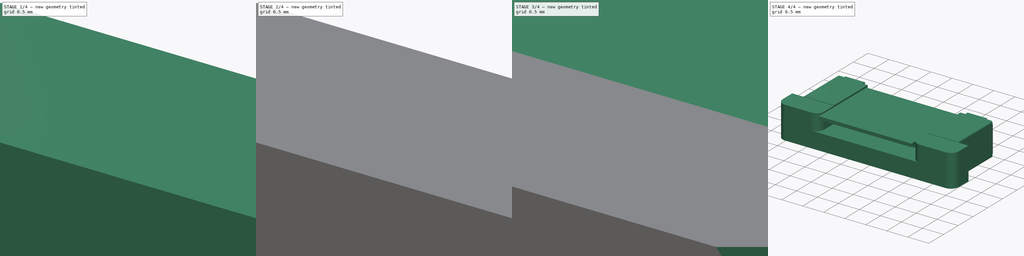
[diagram: build sequence overview — one tinted view per stage of 4, left to right]
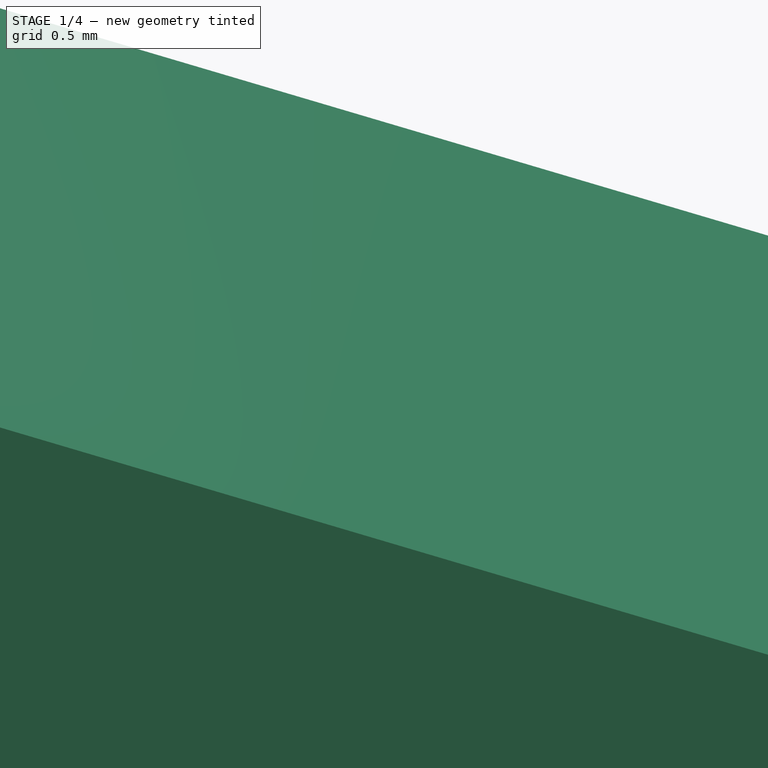
[diagram: stage 1 of 4 — iso view after this stage's code; geometry added in this stage tinted green]
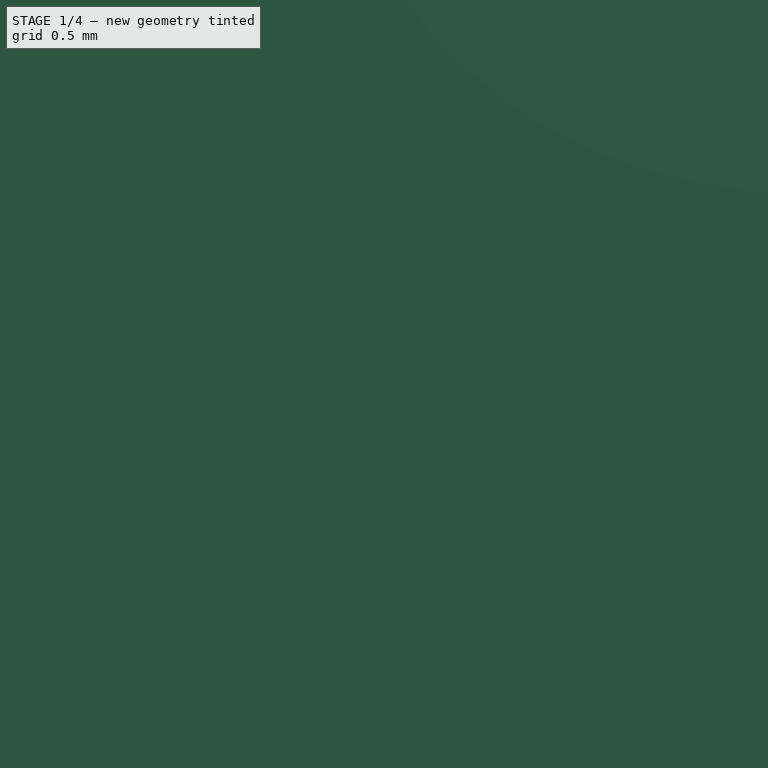
[diagram: stage 1 of 4 — front view after this stage's code; geometry added in this stage tinted green]
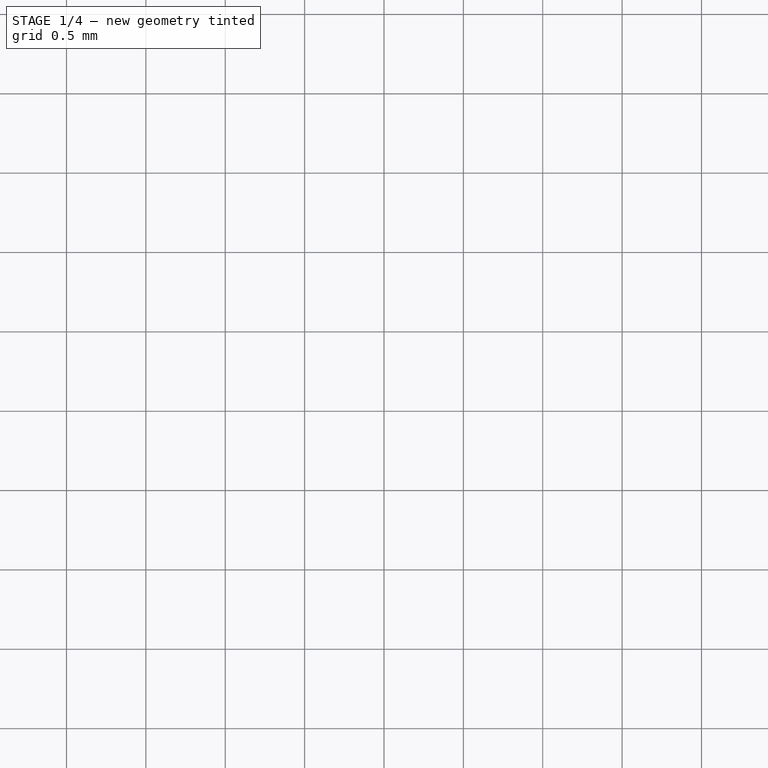
[diagram: stage 1 of 4 — top view after this stage's code; geometry added in this stage tinted green]
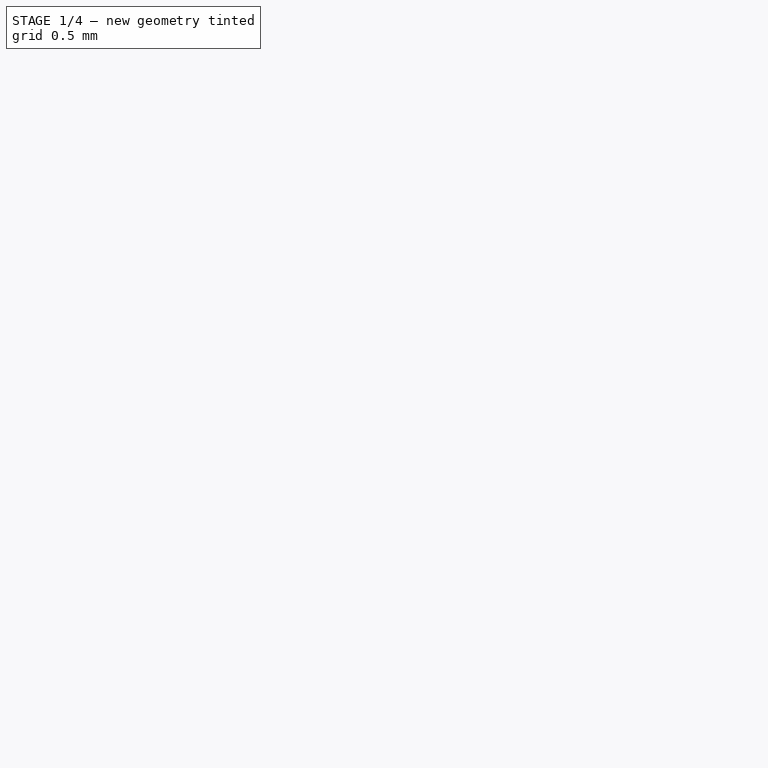
[diagram: stage 1 of 4 — right view after this stage's code; geometry added in this stage tinted green]
FCSTD DOCUMENT  (FreeCAD 0.20R29177 +426 (Git))
Label: Connector10P
License: All rights reserved
LicenseURL: http://en.wikipedia.org/wiki/All_rights_reserved
objects: Sketcher::SketchObject×9, PartDesign::Pad×8, PartDesign::ShapeBinder×7, Part::FeaturePython×2, App::Part×2, Part::Feature×1, Part::Refine×1, PartDesign::Plane×1, PartDesign::Mirrored×1, PartDesign::Fillet×1, PartDesign::LinearPattern×1, PartDesign::Pocket×1, PartDesign::Body×1
note: 44 computed .brp shape members not serialized (recipe doc carries the construction recipe); baked Part::Feature solids carry a one-line shape summary decoded from their .brp

FEATURE [Part::Feature] OBJ_NEW_PCB001
  shape: bbox 41.93 x 20.87 x 7.913 mm, 1774 faces, 0 solids (baked)
FEATURE [Part::Refine] OBJ_NEW_PCB001001
  Placement = pos=(0,0,-10) rot=(0,0,1;0rad)
  Source = -> OBJ_NEW_PCB001
FEATURE [PartDesign::ShapeBinder] ShapeBinder
  Support = -> [OBJ_NEW_PCB001001]
  TraceSupport = false
FEATURE [Sketcher::SketchObject] Sketch
  AttachmentOffset = pos=(0,0,0.138) rot=(0,0,1;0rad)
  ExternalGeometry = -> [ShapeBinder]
  FullyConstrained = true
  Placement = pos=(0,0,0.138) rot=(0,0,1;0rad)
  sketch-geometry (9):
    g0: LineSegment StartX=4029.04 StartY=-3060.45 StartZ=0 EndX=4070.96 EndY=-3060.45 EndZ=0
    g1: LineSegment StartX=4070.96 StartY=-3060.45 StartZ=0 EndX=4070.96 EndY=-3060.45 EndZ=0
    g2: LineSegment StartX=4070.96 StartY=-3060.45 StartZ=0 EndX=4070.96 EndY=-3060.45 EndZ=0
    g3: LineSegment StartX=4070.96 StartY=-3060.45 StartZ=0 EndX=4070.96 EndY=-3060.45 EndZ=0
    g4: LineSegment StartX=4070.96 StartY=-3060.45 StartZ=0 EndX=4070.93 EndY=-3063.68 EndZ=0
    g5: ArcOfCircle CenterX=4069.02 CenterY=-3063.66 CenterZ=0 NormalX=0 NormalY=0 NormalZ=1 AngleXU=0 Radius=1.91239 StartAngle=4.71239 EndAngle=6.27304
    g6: LineSegment StartX=4069.02 StartY=-3065.57 StartZ=0 EndX=4030.97 EndY=-3065.57 EndZ=0
    g7: ArcOfCircle CenterX=4030.97 CenterY=-3063.66 CenterZ=0 NormalX=0 NormalY=0 NormalZ=1 AngleXU=0 Radius=1.91239 StartAngle=3.14809 EndAngle=4.71239
    g8: LineSegment StartX=4029.06 StartY=-3063.67 StartZ=0 EndX=4029.04 EndY=-3060.45 EndZ=0
  constraints (23):
    c: Coincident(g-6,g0)
    c: Coincident(g0,g-7)
    c: Coincident(g0,g1)
    c: PointOnObject(g1,g-7)
    c: Vertical(g1)
    c: Coincident(g1,g2)
    c: PointOnObject(g2,g-7)
    c: Vertical(g2)
    c: Coincident(g2,g3)
    c: PointOnObject(g3,g-7)
    c: Vertical(g3)
    c: Coincident(g3,g4)
    c: Tangent(g4,g5) = 1.5708
    c: PointOnObject(g5,g-5)
    c: PointOnObject(g4,g-7)
    c: PointOnObject(g6,g-5)
    c: Tangent(g6,g5) = 1.5708
    c: PointOnObject(g-8,g5)
    c: Tangent(g7,g6) = 1.5708
    c: Equal(g7,g5)
    c: Coincident(g8,g0)
    c: PointOnObject(g7,g-6)
    c: Tangent(g8,g7) = 1.5708
FEATURE [PartDesign::Pad] Pad
  Direction = (0,0,1)
  Length = 7.68
  Length2 = 10
  Placement = pos=(0,0,0.138) rot=(0,0,1;0rad)
  Profile = -> Sketch
  ReferenceAxis = -> Sketch [N_Axis]
  Type = 0
FEATURE [PartDesign::ShapeBinder] ShapeBinder001
  Support = -> [OBJ_NEW_PCB001001]
  TraceSupport = false
FEATURE [PartDesign::ShapeBinder] ShapeBinder002
  Support = -> [OBJ_NEW_PCB001001]
  TraceSupport = false
FEATURE [PartDesign::ShapeBinder] ShapeBinder003
  Support = -> [OBJ_NEW_PCB001001]
  TraceSupport = false
FEATURE [Sketcher::SketchObject] Sketch001
  ExternalGeometry = -> [ShapeBinder001,ShapeBinder003]
  FullyConstrained = true
  MapMode = 5
  Placement = pos=(0,-3049.04,0) rot=(0,0.707107,0.707107;3.14159rad)
  Support = -> [ShapeBinder003]
  sketch-geometry (6):
    g0: LineSegment StartX=-4068.04 StartY=7.90646 StartZ=0 EndX=-4061.02 EndY=7.90646 EndZ=0
    g1: LineSegment StartX=-4061.02 StartY=7.90646 StartZ=0 EndX=-4061.02 EndY=0.0524015 EndZ=0
    g2: LineSegment StartX=-4061.02 StartY=0.0524015 StartZ=0 EndX=-4068.04 EndY=0.0524015 EndZ=0
    g3: ArcOfCircle CenterX=-4068.04 CenterY=0.407349 CenterZ=0 NormalX=0 NormalY=0 NormalZ=1 AngleXU=0 Radius=0.354948 StartAngle=3.14159 EndAngle=4.71239
    g4: LineSegment StartX=-4068.39 StartY=0.407349 StartZ=0 EndX=-4068.39 EndY=7.55151 EndZ=0
    g5: ArcOfCircle CenterX=-4068.04 CenterY=7.55151 CenterZ=0 NormalX=0 NormalY=0 NormalZ=1 AngleXU=0 Radius=0.354948 StartAngle=1.5708 EndAngle=3.14159
  constraints (16):
    c: PointOnObject(g0,g-3)
    c: Horizontal(g0)
    c: Coincident(g0,g1)
    c: Vertical(g1)
    c: Coincident(g1,g2)
    c: Horizontal(g2)
    c: Tangent(g2,g3) = 1.5708
    c: Vertical(g4)
    c: Tangent(g4,g5) = 1.5708
    c: Tangent(g5,g0) = 1.5708
    c: PointOnObject(g4,g-4)
    c: PointOnObject(g-9,g1)
    c: PointOnObject(g2,g-8)
    c: Tangent(g3,g4) = 1.5708
    c: Equal(g3,g5)
    c: PointOnObject(g-5,g5)
FEATURE [PartDesign::Pad] Pad001
  BaseFeature = -> Pad
  Direction = (0,1,-2e-16)
  Length = 11.42
  Length2 = 10
  Placement = pos=(0,0,0.138) rot=(0,0,1;0rad)
  Profile = -> Sketch001
  ReferenceAxis = -> Sketch001 [N_Axis]
  Reversed = true
  Type = 0
FEATURE [Sketcher::SketchObject] Sketch002
  ExternalGeometry = -> [Sketch001,ShapeBinder002]
  FullyConstrained = true
  MapMode = 5
  Placement = pos=(-2.45147,-3044.98,-0.004386) rot=(0.000285,0.707106,0.707107;3.14102rad)
  Support = -> [ShapeBinder002]
  sketch-geometry (6):
    g0: LineSegment StartX=-4070.85 StartY=7.13036 StartZ=0 EndX=-4064.93 EndY=7.13036 EndZ=0
    g1: LineSegment StartX=-4063.79 StartY=5.98665 StartZ=0 EndX=-4063.79 EndY=1.97487 EndZ=0
    g2: LineSegment StartX=-4064.93 StartY=0.831161 StartZ=0 EndX=-4070.85 EndY=0.831161 EndZ=0
    g3: LineSegment StartX=-4070.85 StartY=0.831161 StartZ=0 EndX=-4070.85 EndY=7.13036 EndZ=0
    g4: ArcOfCircle CenterX=-4064.93 CenterY=5.98665 CenterZ=0 NormalX=0 NormalY=0 NormalZ=1 AngleXU=0 Radius=1.14371 StartAngle=8.5e-15 EndAngle=1.5708
    g5: ArcOfCircle CenterX=-4064.93 CenterY=1.97487 CenterZ=0 NormalX=0 NormalY=0 NormalZ=1 AngleXU=0 Radius=1.14371 StartAngle=4.71239 EndAngle=6.28319
  constraints (16):
    c: Coincident(g2,g3)
    c: Coincident(g3,g0)
    c: Horizontal(g0)
    c: Horizontal(g2)
    c: Vertical(g1)
    c: Vertical(g3)
    c: Tangent(g0,g4) = 1.5708
    c: Tangent(g1,g4) = 1.5708
    c: Tangent(g1,g5) = 1.5708
    c: Tangent(g2,g5) = 1.5708
    c: Equal(g5,g4)
    c: PointOnObject(g0,g-3)
    c: PointOnObject(g-4,g0)
    c: PointOnObject(g-5,g2)
    c: PointOnObject(g-6,g1)
    c: PointOnObject(g-8,g4)
FEATURE [PartDesign::Pad] Pad002
  BaseFeature = -> Pad001
  Direction = (0.000805087,1,1.44041e-06)
  Length = 3
  Length2 = 10
  Placement = pos=(0,0,0.138) rot=(0,0,1;0rad)
  Profile = -> Sketch002
  ReferenceAxis = -> Sketch002 [N_Axis]
  Refine = true
  Reversed = true
  Type = 0
FEATURE [Sketcher::SketchObject] Sketch003
  ExternalGeometry = -> [ShapeBinder001,Sketch001]
  FullyConstrained = true
  MapMode = 5
  Placement = pos=(0,-3048.64,0) rot=(0,0.707107,0.707107;3.14159rad)
  Support = -> [ShapeBinder001]
  sketch-geometry (14):
    g0: ArcOfCircle CenterX=-4068.04 CenterY=7.55151 CenterZ=0 NormalX=0 NormalY=0 NormalZ=1 AngleXU=0 Radius=0.354948 StartAngle=1.5708 EndAngle=3.14159
    g1: LineSegment StartX=-4068.39 StartY=7.55151 StartZ=0 EndX=-4068.39 EndY=7.12597 EndZ=0
    g2: LineSegment StartX=-4068.39 StartY=7.12597 StartZ=0 EndX=-4068.01 EndY=7.12597 EndZ=0
    g3: LineSegment StartX=-4068.01 StartY=7.12597 StartZ=0 EndX=-4068.01 EndY=7.51967 EndZ=0
    g4: LineSegment StartX=-4068.01 StartY=7.51967 StartZ=0 EndX=-4066.83 EndY=7.51967 EndZ=0
    g5: LineSegment StartX=-4066.83 StartY=7.51967 StartZ=0 EndX=-4066.83 EndY=7.90646 EndZ=0
    g6: LineSegment StartX=-4066.83 StartY=7.90646 StartZ=0 EndX=-4068.04 EndY=7.90646 EndZ=0
    g7: LineSegment StartX=-4068.39 StartY=0.82677 StartZ=0 EndX=-4068.01 EndY=0.82677 EndZ=0
    g8: LineSegment StartX=-4066.83 StartY=0.43307 StartZ=0 EndX=-4066.83 EndY=0.0524015 EndZ=0
    g9: LineSegment StartX=-4066.83 StartY=0.0524015 StartZ=0 EndX=-4068.04 EndY=0.0524015 EndZ=0
    g10: LineSegment StartX=-4068.39 StartY=0.407349 StartZ=0 EndX=-4068.39 EndY=0.82677 EndZ=0
    g11: LineSegment StartX=-4066.83 StartY=0.43307 StartZ=0 EndX=-4068.01 EndY=0.43307 EndZ=0
    g12: LineSegment StartX=-4068.01 StartY=0.43307 StartZ=0 EndX=-4068.01 EndY=0.82677 EndZ=0
    g13: ArcOfCircle CenterX=-4068.04 CenterY=0.407349 CenterZ=0 NormalX=0 NormalY=0 NormalZ=1 AngleXU=0 Radius=0.354948 StartAngle=3.14159 EndAngle=4.71239
  constraints (33):
    c: Tangent(g0,g1) = -1.5708
    c: Coincident(g1,g2)
    c: Coincident(g2,g-4)
    c: Coincident(g2,g3)
    c: Coincident(g3,g-4)
    c: Coincident(g3,g4)
    c: Coincident(g4,g-3)
    c: Coincident(g4,g5)
    c: Coincident(g5,g6)
    c: Coincident(g6,g0)
    c: Horizontal(g5,g-5)
    c: Vertical(g5)
    c: Coincident(g-5,g0)
    c: Coincident(g0,g-5)
    c: Vertical(g1)
    c: Horizontal(g2)
    c: Coincident(g8,g9)
    c: Coincident(g10,g7)
    c: Horizontal(g7)
    c: Horizontal(g9)
    c: Vertical(g8)
    c: Vertical(g10)
    c: Coincident(g11,g12)
    c: Tangent(g9,g13) = 1.5708
    c: Tangent(g10,g13) = 1.5708
    c: Coincident(g11,g8)
    c: Coincident(g12,g7)
    c: Equal(g13,g0)
    c: Coincident(g11,g-9)
    c: PointOnObject(g8,g-6)
    c: Coincident(g-8,g8)
    c: Coincident(g7,g-9)
    c: PointOnObject(g7,g-7)
FEATURE [PartDesign::Pad] Pad003
  BaseFeature = -> Pad002
  Direction = (0,1,-2e-16)
  Length = 1
  Length2 = 10
  Placement = pos=(0,0,0.138) rot=(0,0,1;0rad)
  Profile = -> Sketch003
  ReferenceAxis = -> Sketch003 [N_Axis]
  Refine = true
  Reversed = true
  Type = 0
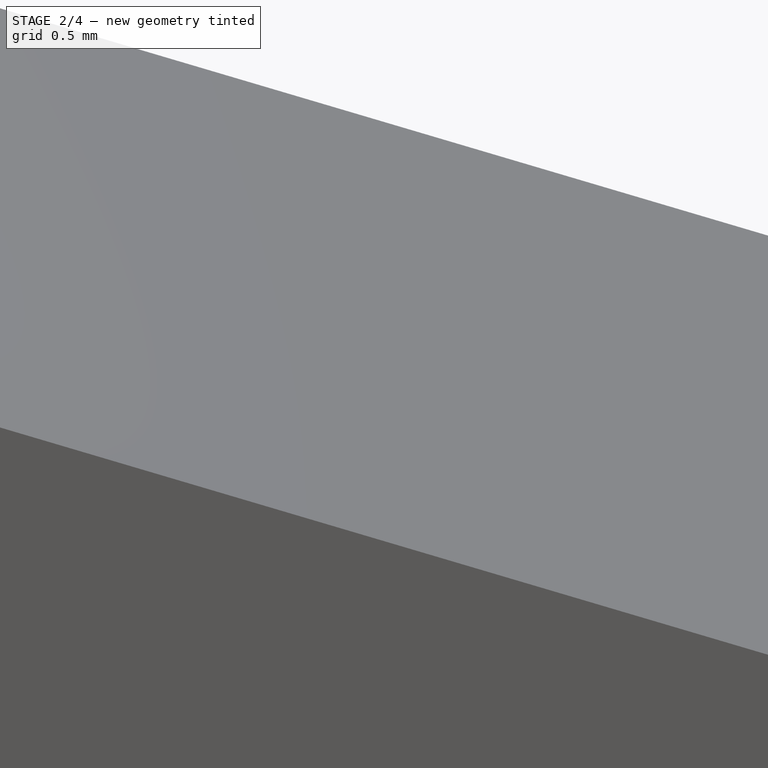
[diagram: stage 2 of 4 — iso view after this stage's code; geometry added in this stage tinted green]
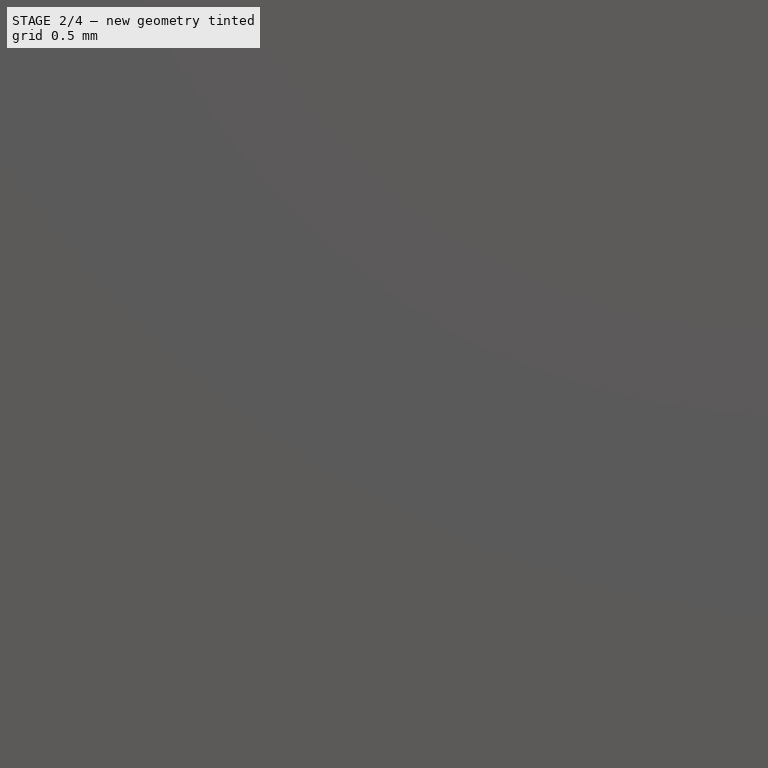
[diagram: stage 2 of 4 — front view after this stage's code; geometry added in this stage tinted green]
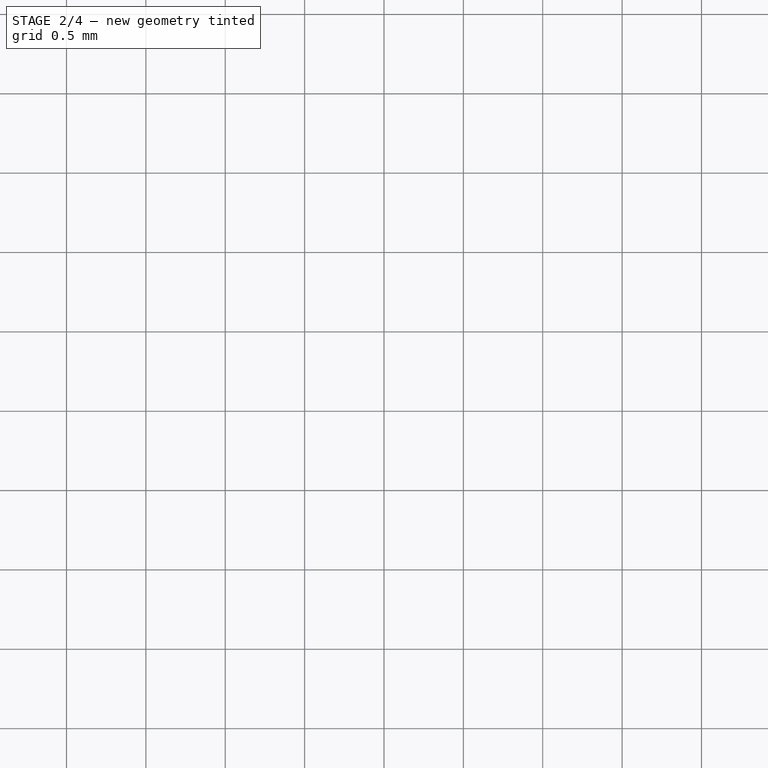
[diagram: stage 2 of 4 — top view after this stage's code; geometry added in this stage tinted green]
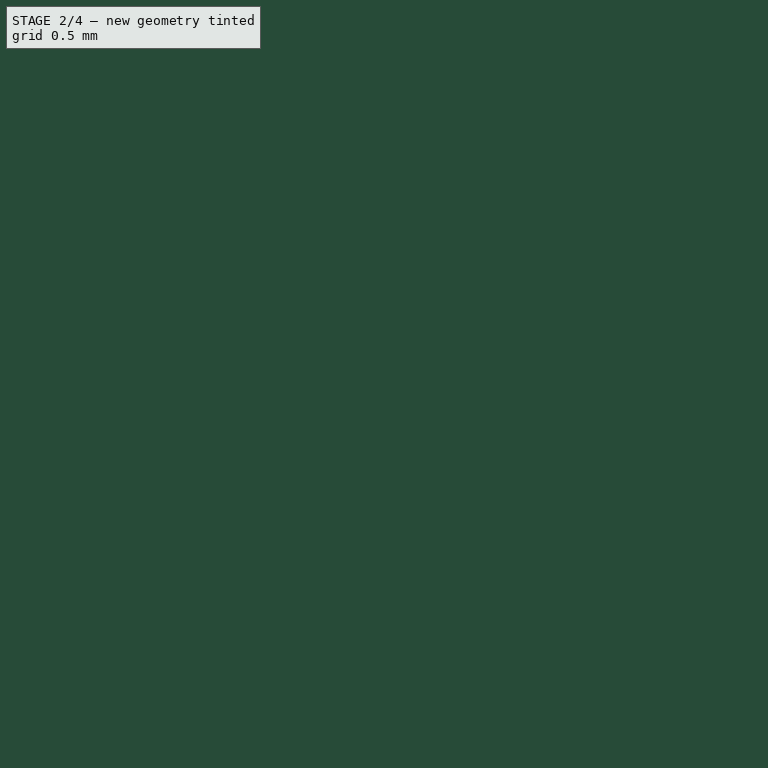
[diagram: stage 2 of 4 — right view after this stage's code; geometry added in this stage tinted green]
FEATURE [PartDesign::ShapeBinder] ShapeBinder004
  Support = -> [OBJ_NEW_PCB001001]
  TraceSupport = false
FEATURE [Sketcher::SketchObject] Sketch004
  ExternalGeometry = -> [ShapeBinder004,Sketch003]
  FullyConstrained = true
  MapMode = 5
  Placement = pos=(0,-3048.25,0) rot=(0,0.707107,0.707107;3.14159rad)
  Support = -> [ShapeBinder004]
  sketch-geometry (8):
    g0: LineSegment StartX=-4066.83 StartY=7.90646 StartZ=0 EndX=-4062.2 EndY=7.90646 EndZ=0
    g1: LineSegment StartX=-4062.2 StartY=7.90646 StartZ=0 EndX=-4062.2 EndY=7.51967 EndZ=0
    g2: LineSegment StartX=-4062.2 StartY=7.51967 StartZ=0 EndX=-4066.83 EndY=7.51967 EndZ=0
    g3: LineSegment StartX=-4066.83 StartY=7.51967 StartZ=0 EndX=-4066.83 EndY=7.90646 EndZ=0
    g4: LineSegment StartX=-4066.83 StartY=0.0524015 StartZ=0 EndX=-4062.2 EndY=0.0524015 EndZ=0
    g5: LineSegment StartX=-4062.2 StartY=0.0524015 StartZ=0 EndX=-4062.2 EndY=0.43307 EndZ=0
    g6: LineSegment StartX=-4062.2 StartY=0.43307 StartZ=0 EndX=-4066.83 EndY=0.43307 EndZ=0
    g7: LineSegment StartX=-4066.83 StartY=0.43307 StartZ=0 EndX=-4066.83 EndY=0.0524015 EndZ=0
  constraints (20):
    c: Coincident(g0,g1)
    c: Coincident(g1,g2)
    c: Coincident(g2,g3)
    c: Coincident(g3,g0)
    c: Horizontal(g0)
    c: Horizontal(g2)
    c: Vertical(g1)
    c: Vertical(g3)
    c: Coincident(g0,g-10)
    c: Coincident(g1,g-4)
    c: Coincident(g4,g5)
    c: Coincident(g5,g6)
    c: Coincident(g6,g7)
    c: Coincident(g7,g4)
    c: Horizontal(g4)
    c: Horizontal(g6)
    c: Vertical(g5)
    c: Vertical(g7)
    c: Coincident(g4,g-8)
    c: Coincident(g5,g-6)
FEATURE [PartDesign::Pad] Pad004
  BaseFeature = -> Pad003
  Direction = (0,1,-2e-16)
  Length = 1
  Length2 = 10
  Placement = pos=(0,0,0.138) rot=(0,0,1;0rad)
  Profile = -> Sketch004
  ReferenceAxis = -> Sketch004 [N_Axis]
  Refine = true
  Reversed = true
  Type = 0
FEATURE [PartDesign::Plane] DatumPlane
  Length = 3169.19
  MapMode = 45
  Placement = pos=(4050,-3060.45,0.138) rot=(0.57735,0.57735,0.57735;2.0944rad)
  ResizeMode = 0
  Support = -> [Sketch]
  Width = 128.62
FEATURE [PartDesign::Mirrored] Mirrored
  BaseFeature = -> Pad004
  MirrorPlane = -> DatumPlane
  Originals = -> [Pad001,Pad002,Pad003,Pad004]
  Placement = pos=(0,0,0.138) rot=(0,0,1;0rad)
  Refine = true
FEATURE [PartDesign::ShapeBinder] ShapeBinder005
  Support = -> [OBJ_NEW_PCB001001]
  TraceSupport = false
FEATURE [Sketcher::SketchObject] Sketch005
  ExternalGeometry = -> [ShapeBinder005]
  FullyConstrained = true
  MapMode = 5
  Placement = pos=(0,-3049.43,0) rot=(0,0.707107,0.707107;3.14159rad)
  Support = -> [ShapeBinder005]
  sketch-geometry (4):
    g0: LineSegment StartX=-4061.02 StartY=5.94487 StartZ=0 EndX=-4038.98 EndY=5.94487 EndZ=0
    g1: LineSegment StartX=-4038.98 StartY=5.94487 StartZ=0 EndX=-4038.98 EndY=0.0393696 EndZ=0
    g2: LineSegment StartX=-4038.98 StartY=0.0393696 StartZ=0 EndX=-4061.02 EndY=0.0393696 EndZ=0
    g3: LineSegment StartX=-4061.02 StartY=0.0393696 StartZ=0 EndX=-4061.02 EndY=5.94487 EndZ=0
  constraints (10):
    c: Coincident(g0,g1)
    c: Coincident(g1,g2)
    c: Coincident(g2,g3)
    c: Coincident(g3,g0)
    c: Horizontal(g0)
    c: Horizontal(g2)
    c: Vertical(g1)
    c: Vertical(g3)
    c: Coincident(g0,g-3)
    c: Coincident(g1,g-5)
FEATURE [PartDesign::ShapeBinder] ShapeBinder006
  Support = -> [OBJ_NEW_PCB001001]
  TraceSupport = false
FEATURE [Sketcher::SketchObject] Sketch006
  ExternalGeometry = -> [ShapeBinder006]
  FullyConstrained = true
  MapMode = 5
  Placement = pos=(4059.25,0,0) rot=(0.57735,0.57735,0.57735;2.0944rad)
  Support = -> [ShapeBinder006]
  sketch-geometry (11):
    g0: ArcOfCircle CenterX=-3048.98 CenterY=5.12824 CenterZ=0 NormalX=0 NormalY=0 NormalZ=1 AngleXU=0 Radius=0.363535 StartAngle=0.00710585 EndAngle=1.5708
    g1: ArcOfCircle CenterX=-3048.19 CenterY=1.8264 CenterZ=0 NormalX=0 NormalY=0 NormalZ=1 AngleXU=0 Radius=0.399264 StartAngle=3.1487 EndAngle=4.53291
    g2: ArcOfCircle CenterX=-3048.09 CenterY=1.30579 CenterZ=0 NormalX=0 NormalY=0 NormalZ=1 AngleXU=0 Radius=1.29876 StartAngle=3.14159 EndAngle=4.71031
    g3: LineSegment StartX=-3048.27 StartY=1.43355 StartZ=0 EndX=-3044.7 EndY=0.7874 EndZ=0
    g4: LineSegment StartX=-3044.7 StartY=0.7874 StartZ=0 EndX=-3044.7 EndY=0 EndZ=0
    g5: LineSegment StartX=-3044.7 StartY=0 StartZ=0 EndX=-3048.09 EndY=0.00703592 EndZ=0
    g6: LineSegment StartX=-3048.59 StartY=1.82356 StartZ=0 EndX=-3048.62 EndY=5.13083 EndZ=0
    g7: LineSegment StartX=-3048.98 StartY=5.49178 StartZ=0 EndX=-3049.43 EndY=5.49178 EndZ=0
    g8: LineSegment StartX=-3049.43 StartY=5.49178 StartZ=0 EndX=-3049.43 EndY=4.90123 EndZ=0
    g9: LineSegment StartX=-3049.43 StartY=4.90123 StartZ=0 EndX=-3049.39 EndY=4.90123 EndZ=0
    g10: LineSegment StartX=-3049.39 StartY=4.90123 StartZ=0 EndX=-3049.39 EndY=1.30579 EndZ=0
  constraints (26):
    c: Coincident(g3,g4)
    c: Coincident(g4,g5)
    c: Horizontal(g7)
    c: Coincident(g7,g8)
    c: Vertical(g8)
    c: Coincident(g8,g9)
    c: Horizontal(g9)
    c: Coincident(g9,g10)
    c: Vertical(g10)
    c: Tangent(g2,g10) = -1.5708
    c: Tangent(g5,g2) = 1.5708
    c: Tangent(g3,g1) = -1.5708
    c: Tangent(g1,g6) = 1.5708
    c: Tangent(g0,g6) = -1.5708
    c: Tangent(g0,g7) = -1.5708
    c: Coincident(g7,g-3)
    c: PointOnObject(g0,g-4)
    c: PointOnObject(g-5,g0)
    c: Coincident(g9,g-5)
    c: PointOnObject(g2,g-6)
    c: PointOnObject(g-7,g2)
    c: Coincident(g-6,g4)
    c: Coincident(g3,g-8)
    c: PointOnObject(g1,g-4)
    c: PointOnObject(g1,g-8)
    c: Tangent(g1,g-9)
FEATURE [Sketcher::SketchObject] Sketch007
  AttachmentOffset = pos=(0,0,3.807) rot=(0,0,1;0rad)
  ExternalGeometry = -> [Sketch,Sketch005]
  FullyConstrained = true
  MapMode = 2
  Placement = pos=(0,0,3.945) rot=(0,0,1;0rad)
  Support = -> [Sketch]
  sketch-geometry (6):
    g0: ArcOfCircle CenterX=4037.06 CenterY=-3063.66 CenterZ=0 NormalX=0 NormalY=0 NormalZ=1 AngleXU=0 Radius=1.91239 StartAngle=4.71239 EndAngle=6.28319
    g1: LineSegment StartX=4038.98 StartY=-3063.66 StartZ=0 EndX=4038.98 EndY=-3060.45 EndZ=0
    g2: LineSegment StartX=4038.98 StartY=-3060.45 StartZ=0 EndX=4061.02 EndY=-3060.45 EndZ=0
    g3: LineSegment StartX=4061.02 StartY=-3060.45 StartZ=0 EndX=4061.02 EndY=-3063.66 EndZ=0
    g4: ArcOfCircle CenterX=4062.94 CenterY=-3063.66 CenterZ=0 NormalX=0 NormalY=0 NormalZ=1 AngleXU=0 Radius=1.91239 StartAngle=3.14159 EndAngle=4.71239
    g5: LineSegment StartX=4062.94 StartY=-3065.57 StartZ=0 EndX=4037.06 EndY=-3065.57 EndZ=0
  constraints (16):
    c: Vertical(g1)
    c: Coincident(g1,g2)
    c: Horizontal(g2)
    c: Coincident(g2,g3)
    c: Vertical(g3)
    c: Tangent(g3,g4) = -1.5708
    c: Tangent(g5,g0) = 1.5708
    c: Equal(g0,g4)
    c: Equal(g0,g-3)
    c: PointOnObject(g0,g-6)
    c: PointOnObject(g-5,g1)
    c: PointOnObject(g1,g-4)
    c: PointOnObject(g4,g-6)
    c: Tangent(g1,g0) = -1.5708
    c: Tangent(g4,g5) = 1.5708
    c: PointOnObject(g-5,g3)
FEATURE [Sketcher::SketchObject] Sketch008
  ExternalGeometry = -> [Sketch,Sketch005,Sketch004]
  FullyConstrained = true
  MapMode = 5
  Placement = pos=(4050,-3060.45,0.138) rot=(0.57735,0.57735,0.57735;2.0944rad)
  Support = -> [DatumPlane]
  sketch-geometry (8):
    g0: LineSegment StartX=11.0234 StartY=7.38167 StartZ=0 EndX=-5.11816 EndY=7.38167 EndZ=0
    g1: LineSegment StartX=-5.11816 StartY=7.38167 StartZ=0 EndX=-5.11816 EndY=6.59427 EndZ=0
    g2: LineSegment StartX=-5.11816 StartY=6.59427 StartZ=0 EndX=0.26237 EndY=6.59427 EndZ=0
    g3: LineSegment StartX=0.26237 StartY=6.59427 StartZ=0 EndX=0.26237 EndY=5.80687 EndZ=0
    g4: LineSegment StartX=0.26237 StartY=5.80687 StartZ=0 EndX=5.6429 EndY=5.80687 EndZ=0
    g5: LineSegment StartX=5.6429 StartY=5.80687 StartZ=0 EndX=5.6429 EndY=6.59427 EndZ=0
    g6: LineSegment StartX=5.6429 StartY=6.59427 StartZ=0 EndX=11.0234 EndY=6.59427 EndZ=0
    g7: LineSegment StartX=11.0234 StartY=6.59427 StartZ=0 EndX=11.0234 EndY=7.38167 EndZ=0
  constraints (24):
    c: Horizontal(g0)
    c: Coincident(g0,g1)
    c: Vertical(g1)
    c: Coincident(g1,g2)
    c: Horizontal(g2)
    c: Coincident(g2,g3)
    c: Coincident(g3,g4)
    c: Horizontal(g4)
    c: Coincident(g4,g5)
    c: Coincident(g5,g6)
    c: Horizontal(g6)
    c: Coincident(g6,g7)
    c: Vertical(g7)
    c: Equal(g2,g6)
    c: Equal(g6,g4)
    c: Vertical(g3)
    c: Vertical(g5)
    c: Horizontal(g2,g5)
    c: PointOnObject(g-3,g1)
    c: Equal(g3,g1)
    c: Coincident(g0,g7)
    c: PointOnObject(g-5,g0)
    c: PointOnObject(g-4,g7)
    c: Horizontal(g4,g-4)
FEATURE [PartDesign::Fillet] Fillet
  Base = -> Mirrored [Edge188,Edge27]
  BaseFeature = -> Mirrored
  Placement = pos=(0,0,0.138) rot=(0,0,1;0rad)
  Radius = 0.4
  SupportTransform = false
  UseAllEdges = false
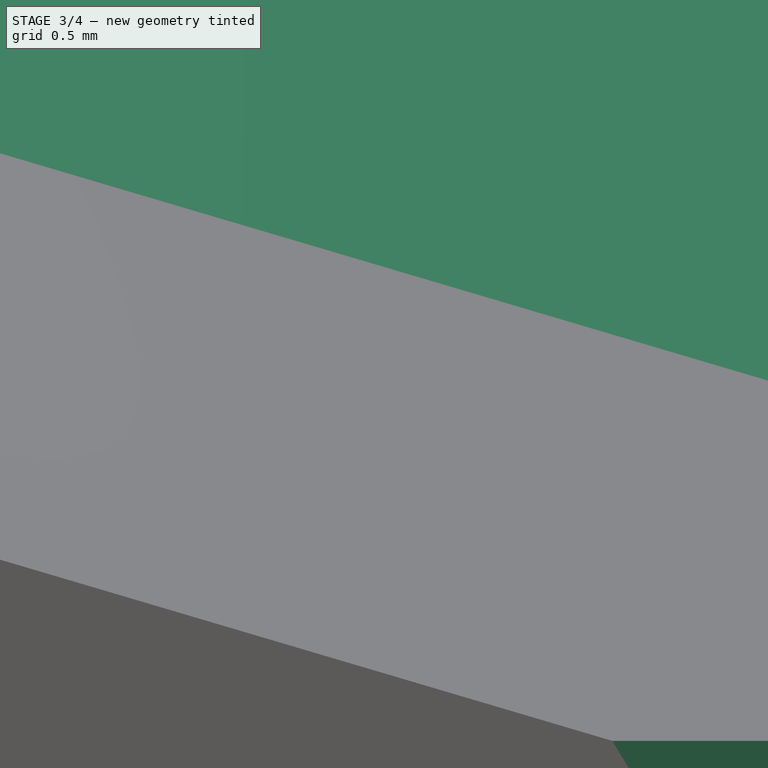
[diagram: stage 3 of 4 — iso view after this stage's code; geometry added in this stage tinted green]
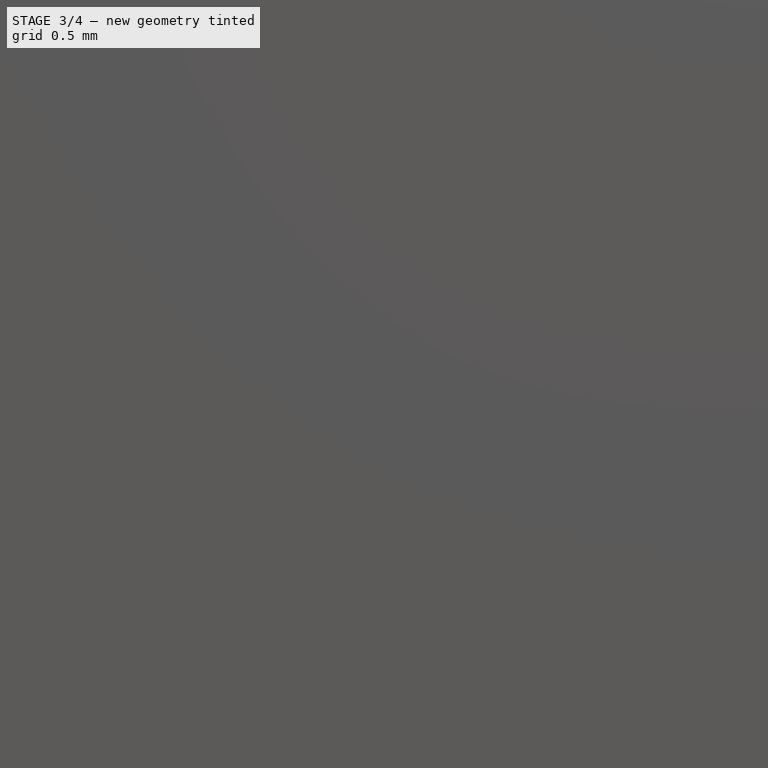
[diagram: stage 3 of 4 — front view after this stage's code; geometry added in this stage tinted green]
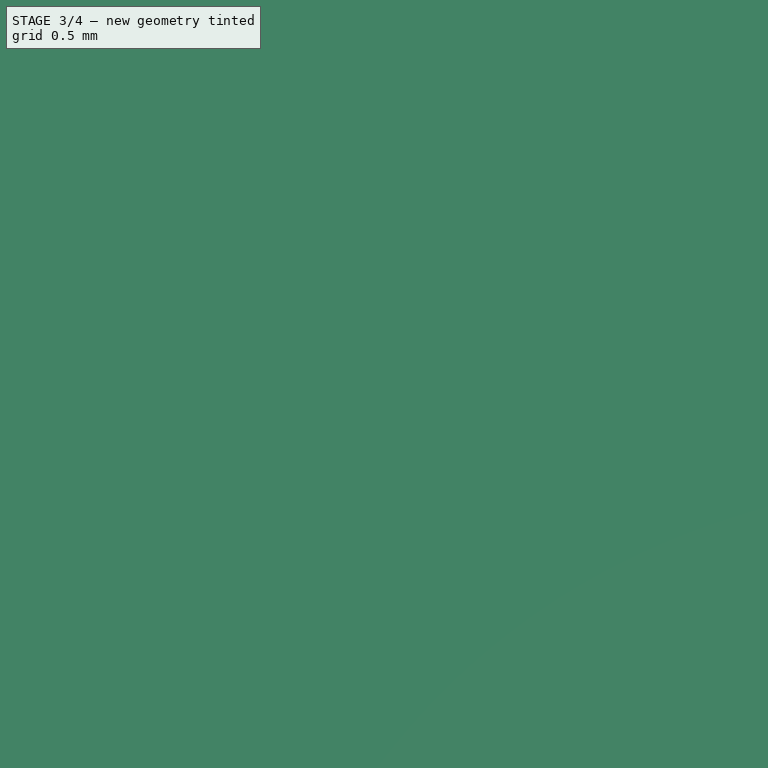
[diagram: stage 3 of 4 — top view after this stage's code; geometry added in this stage tinted green]
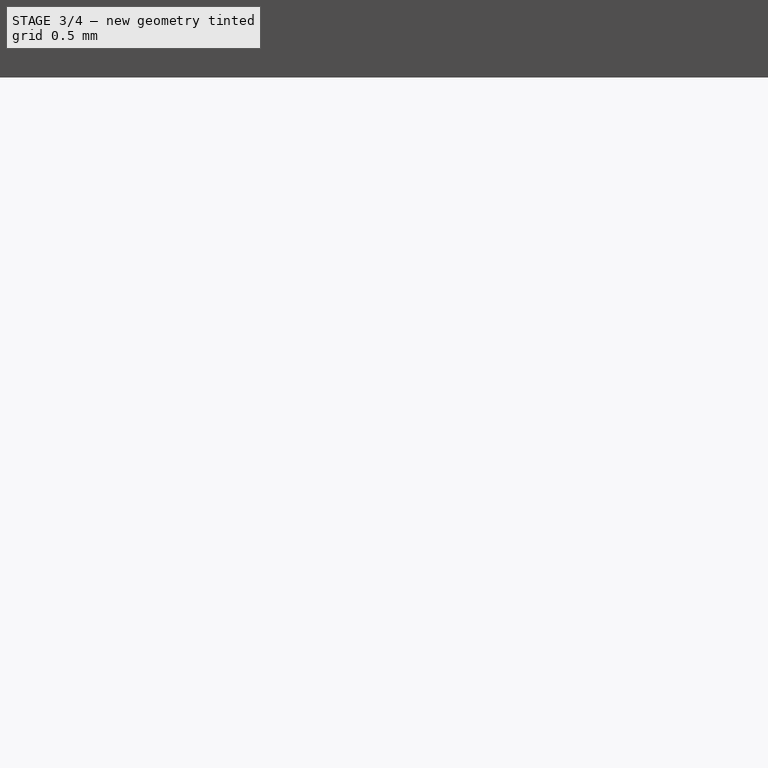
[diagram: stage 3 of 4 — right view after this stage's code; geometry added in this stage tinted green]
FEATURE [PartDesign::Pad] Pad005
  BaseFeature = -> Fillet
  Direction = (0,1,-2e-16)
  Length = 11
  Length2 = 10
  Placement = pos=(0,0,0.138) rot=(0,0,1;0rad)
  Profile = -> Sketch005
  ReferenceAxis = -> Sketch005 [N_Axis]
  Reversed = true
  Type = 0
FEATURE [PartDesign::Pad] Pad006
  BaseFeature = -> Pad005
  Direction = (1,0,0)
  Length = 0.79
  Length2 = 10
  Placement = pos=(0,0,0.138) rot=(0,0,1;0rad)
  Profile = -> Sketch006
  ReferenceAxis = -> Sketch006 [N_Axis]
  Reversed = true
  Type = 0
FEATURE [PartDesign::LinearPattern] LinearPattern
  BaseFeature = -> Pad006
  Direction = -> X_Axis
  Length = 17.716
  Occurrences = 10
  Originals = -> [Pad006]
  Placement = pos=(0,0,0.138) rot=(0,0,1;0rad)
  Reversed = true
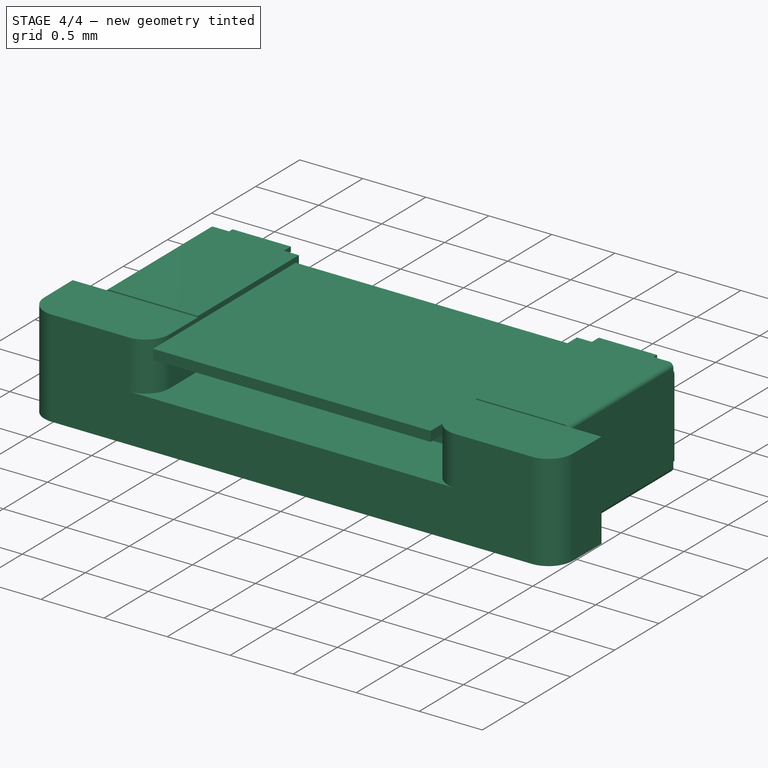
[diagram: stage 4 of 4 — iso view after this stage's code; geometry added in this stage tinted green]
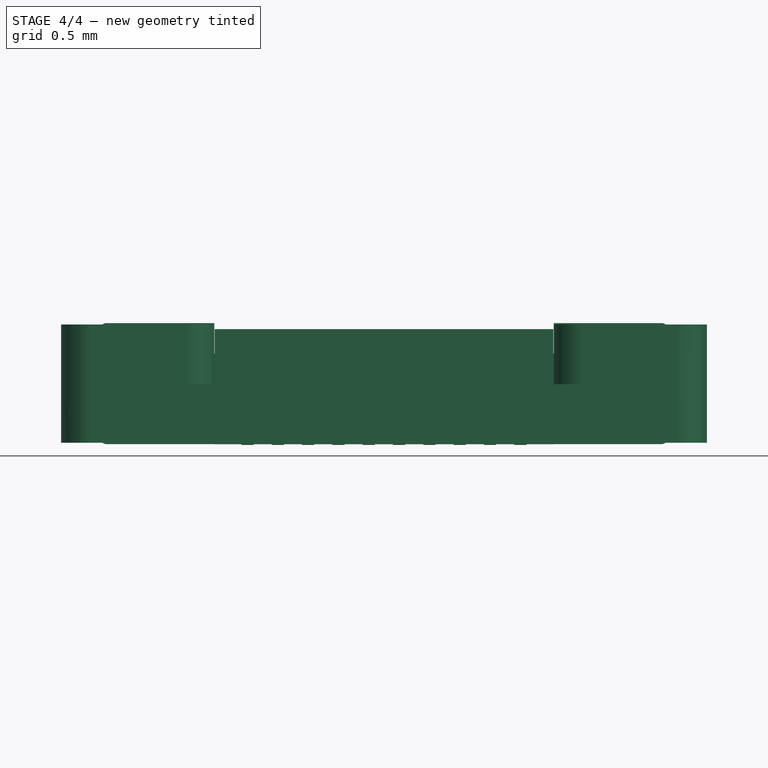
[diagram: stage 4 of 4 — front view after this stage's code; geometry added in this stage tinted green]
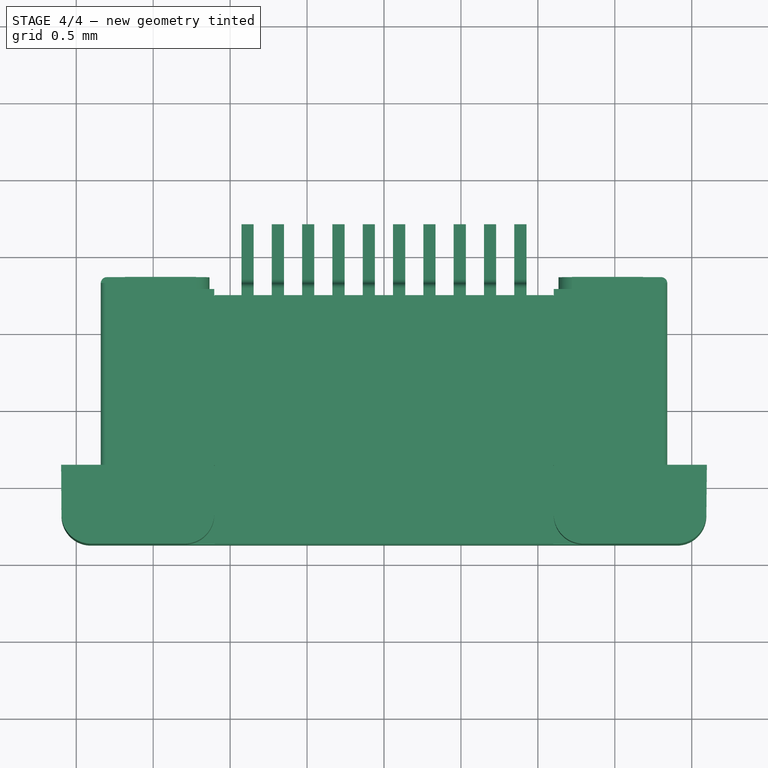
[diagram: stage 4 of 4 — top view after this stage's code; geometry added in this stage tinted green]
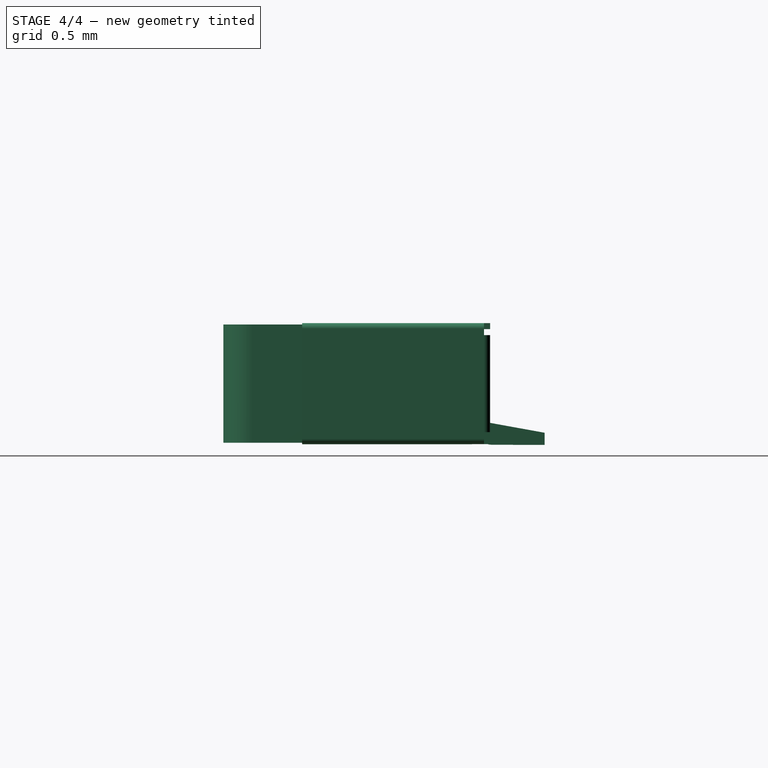
[diagram: stage 4 of 4 — right view after this stage's code; geometry added in this stage tinted green]
FEATURE [PartDesign::Pocket] Pocket
  BaseFeature = -> LinearPattern
  Direction = (0,0,-1)
  Length = 5
  Length2 = 5
  Placement = pos=(0,0,0.138) rot=(0,0,1;0rad)
  Profile = -> Sketch007
  ReferenceAxis = -> Sketch007 [N_Axis]
  Refine = true
  Reversed = true
  Type = 0
FEATURE [PartDesign::Pad] Pad007
  BaseFeature = -> Pocket
  Direction = (1,0,0)
  Length = 22
  Length2 = 10
  Midplane = true
  Placement = pos=(0,0,0.138) rot=(0,0,1;0rad)
  Profile = -> Sketch008
  ReferenceAxis = -> Sketch008 [N_Axis]
  Type = 0
FEATURE [PartDesign::Body] Body
  Group = -> [ShapeBinder,Sketch,Pad,ShapeBinder001,ShapeBinder002,ShapeBinder003,Sketch001,Pad001,Sketch002,Pad002,Sketch003,Pad003,ShapeBinder004,Sketch004,Pad004,DatumPlane,Mirrored,ShapeBinder005,Sketch005,Fillet,Pad005,ShapeBinder006,Sketch006,Pad006,LinearPattern,Sketch007,Pocket,Sketch008,Pad007]
  Origin = -> Origin
  Tip = -> Pad007
FEATURE [Part::FeaturePython] Clone  label="Body001"  # Draft clone (typed FeaturePython)
  AttacherType = Attacher::AttachEngine3D
  Fuse = false
  Objects = -> [Body]
  Placement = pos=(-1028.7,773.9,0) rot=(0,0,1;0rad)
  Scale = (0.254,0.254,0.254)
FEATURE [App::Part] Part
  Group = -> [Clone]
  Origin = -> Origin001
FEATURE [Part::FeaturePython] Clone001  label="Body002"  # Draft clone (typed FeaturePython)
  AttacherType = Attacher::AttachEngine3D
  Fuse = false
  Objects = -> [Clone]
  Placement = pos=(-405.308,304.917,0) rot=(0,0,1;0rad)
  Scale = (0.394,0.394,0.394)
FEATURE [App::Part] Part001
  Group = -> [Clone001]
  Origin = -> Origin002
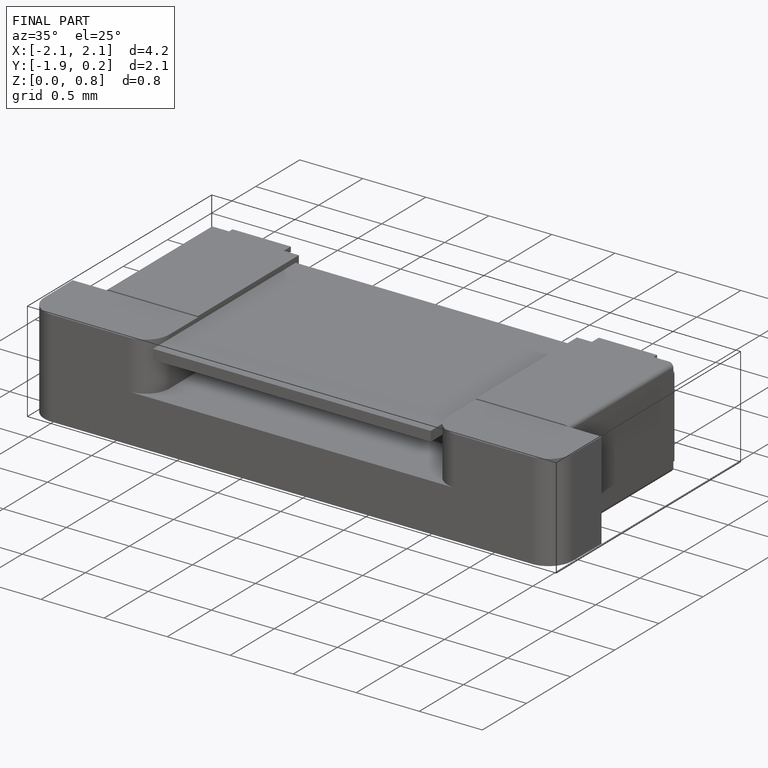
[diagram: finished part — iso view with bounding-box wireframe]
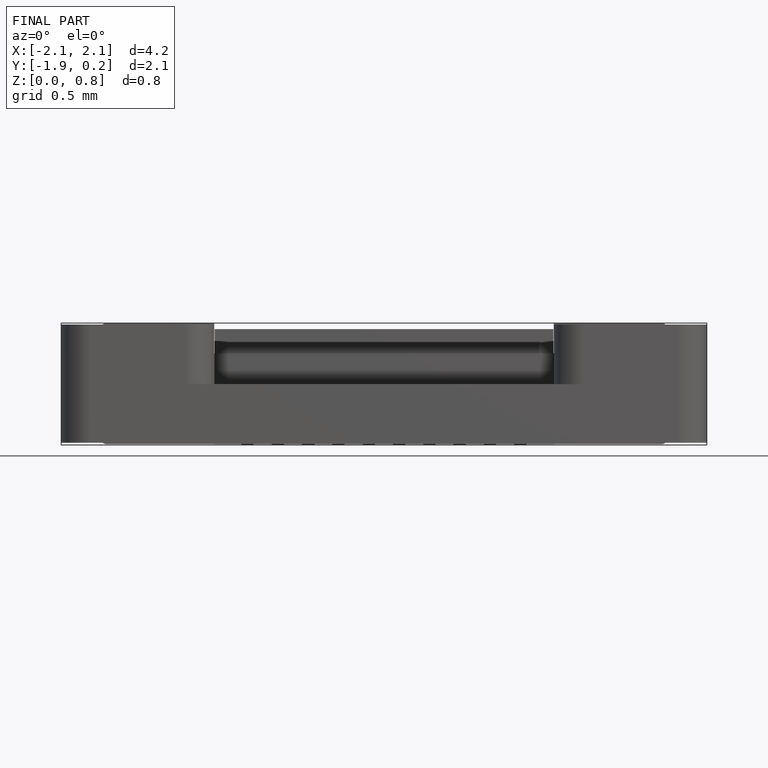
[diagram: finished part — front view with bounding-box wireframe]
